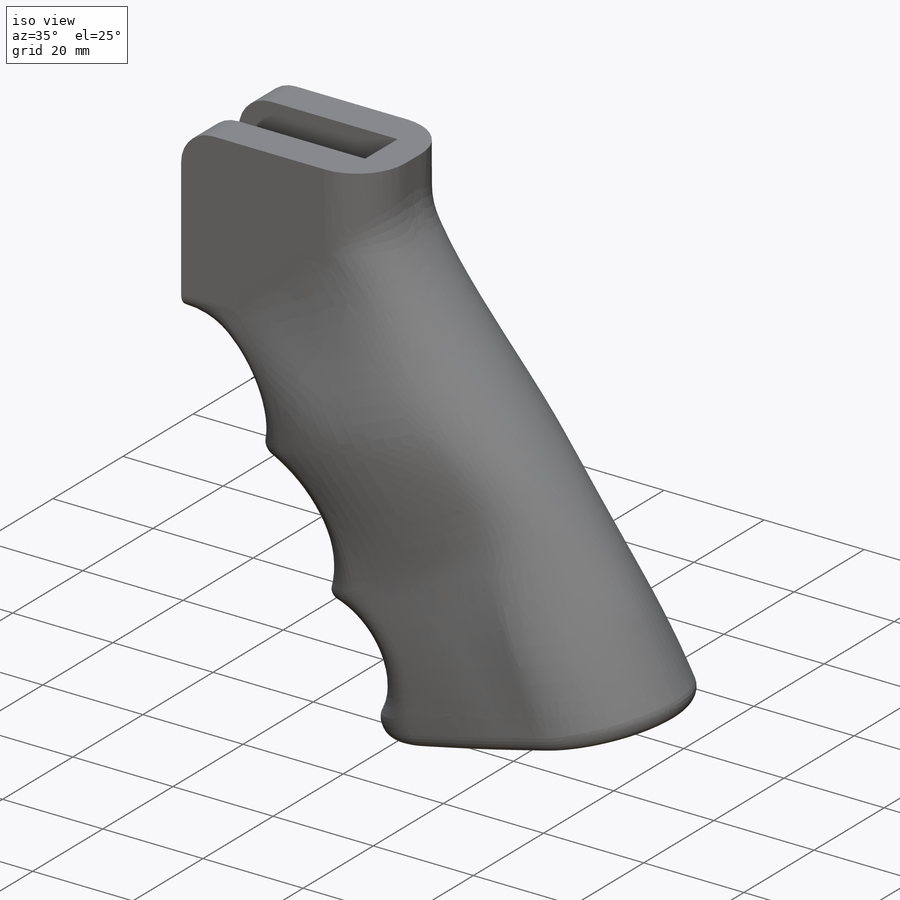
[diagram: iso view]
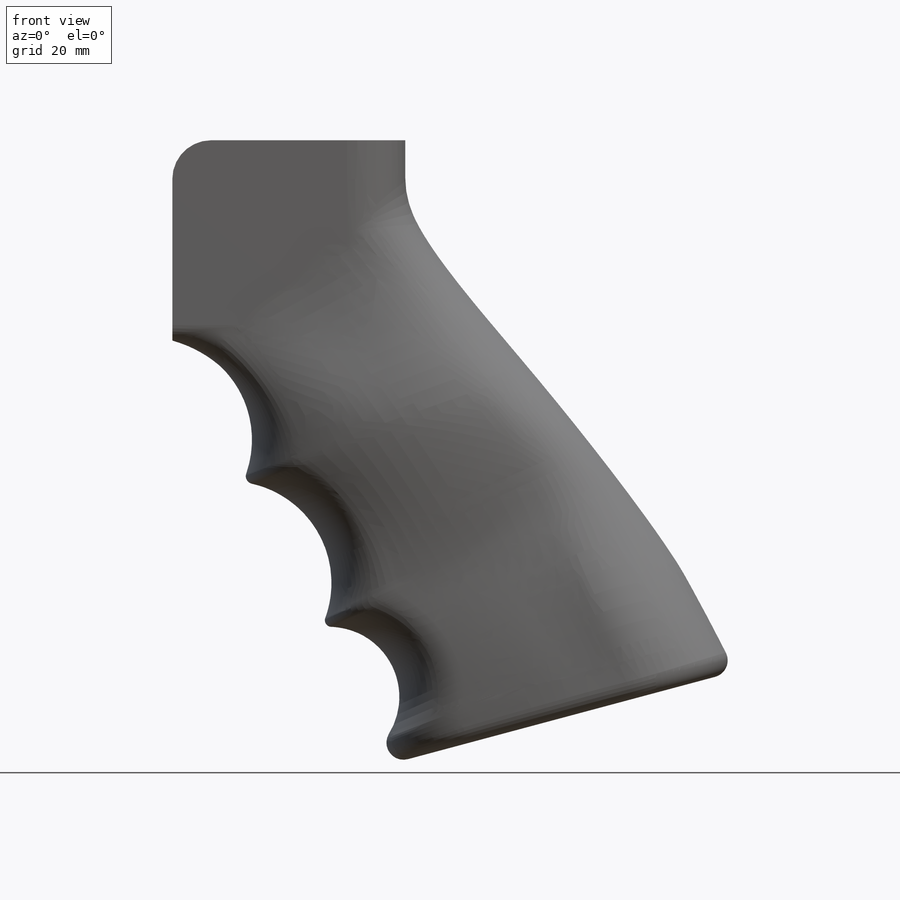
[diagram: front view]
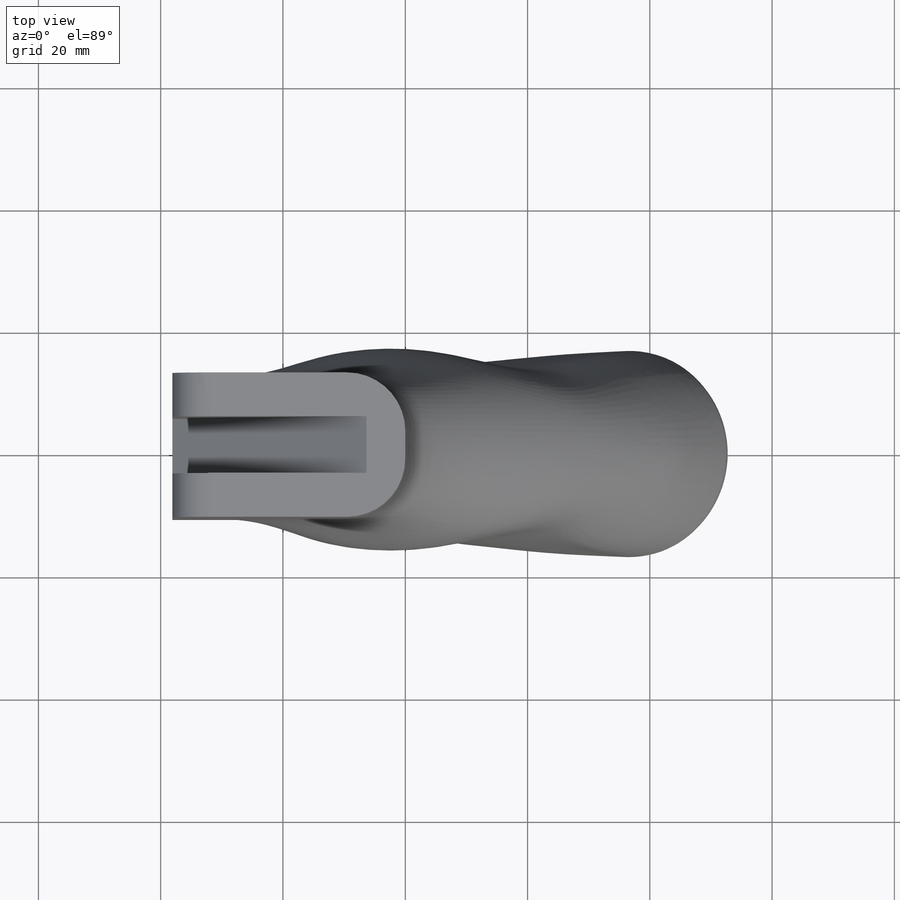
[diagram: top view]
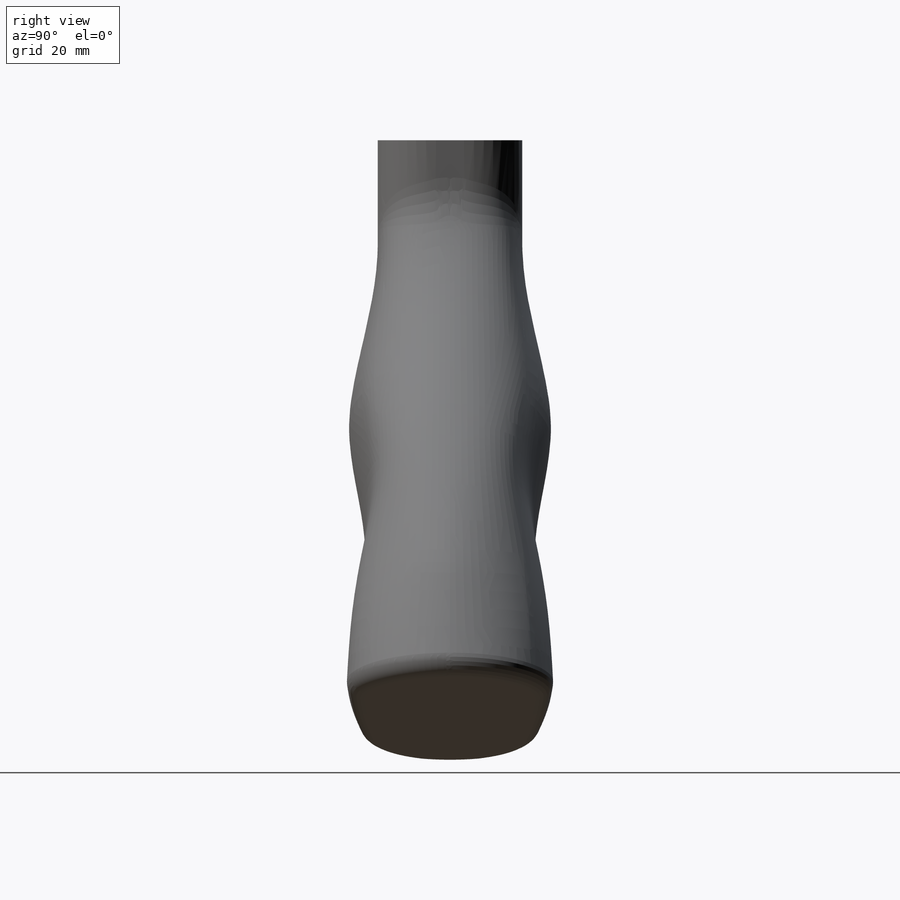
[diagram: right view]
SOLIDWORKS PART (.sldprt)
format: sldprt  version: not decoded by parser v0  size: 2,051,072 bytes
history: native  units: mm
features: sketch x14, plane x5, fillet x5, mirror x2, material x1, extrude x1, cut_extrude x1 (+12 scaffold rows collapsed)
feature tree (41):
  scaffold x12  (default folders/planes/origin — collapsed)
  material  "Material <not specified>"
  sketch  "Sketch1"  dims[c1.D7=6.35mm c1.D9=~27.821704mm c1.D13=~4.036096mm c1.D1=55.88mm c1.D2=~21.407859mm c2.D2=90.0deg c2.D3=76.2mm c2.D4=38.1mm c2.D5=68.58mm c2.D6=~8.825748mm c3.D6=25.0deg c3.D7=32.766mm c3.D8=38.1mm c3.D9=~17.688073mm c3.D10=~9.615754mm c4.D10=8.0deg c4.D9=~16.327216mm c4.D3=~11.169741mm c5.D3=25.0deg c5.D2=~63.400795mm c6.D2=100.0deg c6.D6=24.892mm c7.D2=~15.404614mm c8.D2=75.0deg c8.D3=5.588mm c8.D9=5.588mm c8.D10=5.588mm c8.D11=24.892mm c8.D12=24.892mm c9.D10=5.588mm c9.D6=~7.779766mm]
  sketch  "Sketch2"
  extrude  "Boss-Extrude1"  Depth=23.622mm
  sketch  "Sketch9"
  plane  "Plane1"
  sketch  "Sketch3"  dims[c1.D1=6.35mm c1.D2=11.43mm c1.D3=11.43mm c1.D4=6.35mm c2.D2=0.254mm]
  fillet  "Fillet1"  Radius=9.525mm
  plane  "Plane2"
  sketch  "Sketch4"  dims[D1=27.94mm D2=33.02mm]
  plane  "Plane3"
  sketch  "Sketch5"  dims[D1=26.67mm D2=27.94mm]
  plane  "Plane4"
  sketch  "Sketch6"  dims[D1=34.036mm D2=29.21mm]
  sketch  "Sketch7"
  sketch  "Sketch8"
  sketch  "3DSketch1"
  sketch  "3DSketch2"
  fillet  "Fillet2"  Radius=2.54mm
  fillet  "Fillet3"  Radius=15.24mm
  fillet  "Fillet4"  Radius=6.35mm
  sketch  "Sketch10"  dims[D1=25.4mm D2=31.75mm]
  cut_extrude  "Cut-Extrude1"  Depth=4.6355mm
  fillet  "Fillet5"  Radius=2.794mm
  mirror  "Mirror1"
  plane  "Plane5"  Offset=21.26mm
  sketch  "Sketch11"  dims[D1=6.35mm]
  sketch  "Sketch12"  dims[D1=12.7mm D2=18.288mm D3=18.288mm]
  mirror  "Split Line2"
decode coverage: 15 of 23 modeling features carry decoded parameters
note: ~ marks probable driven/reference dimensions
note: suppression state not decoded; provenance and decode notes live in map.json
